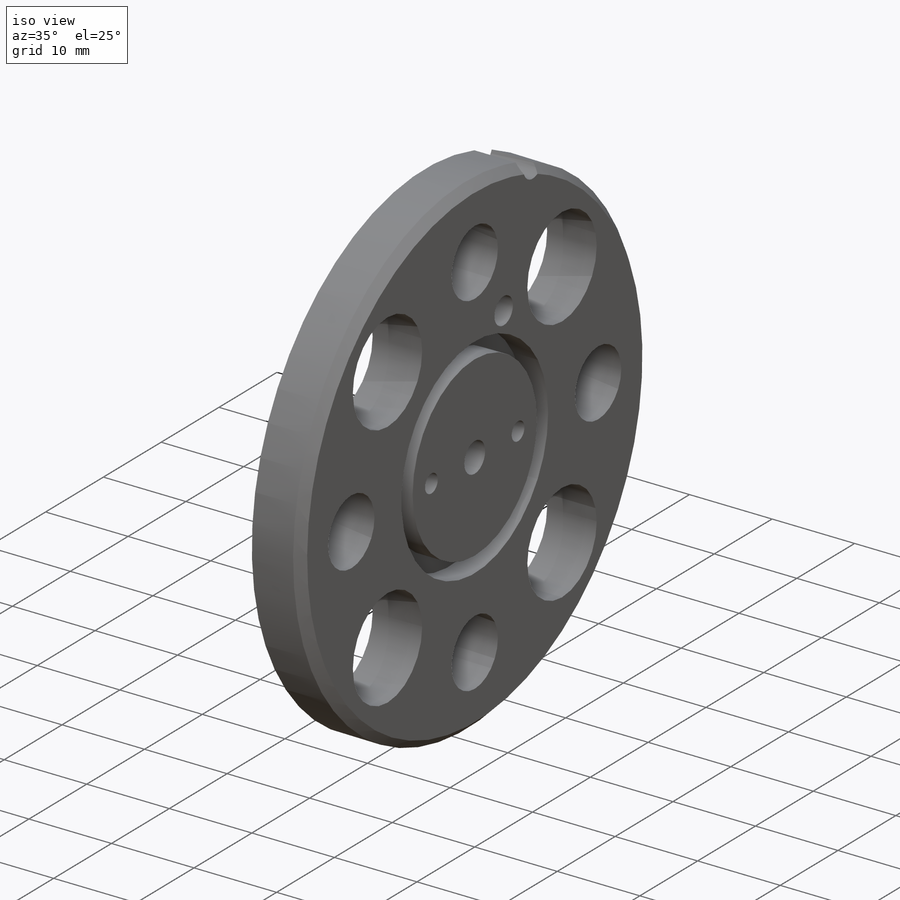
[diagram: iso view]
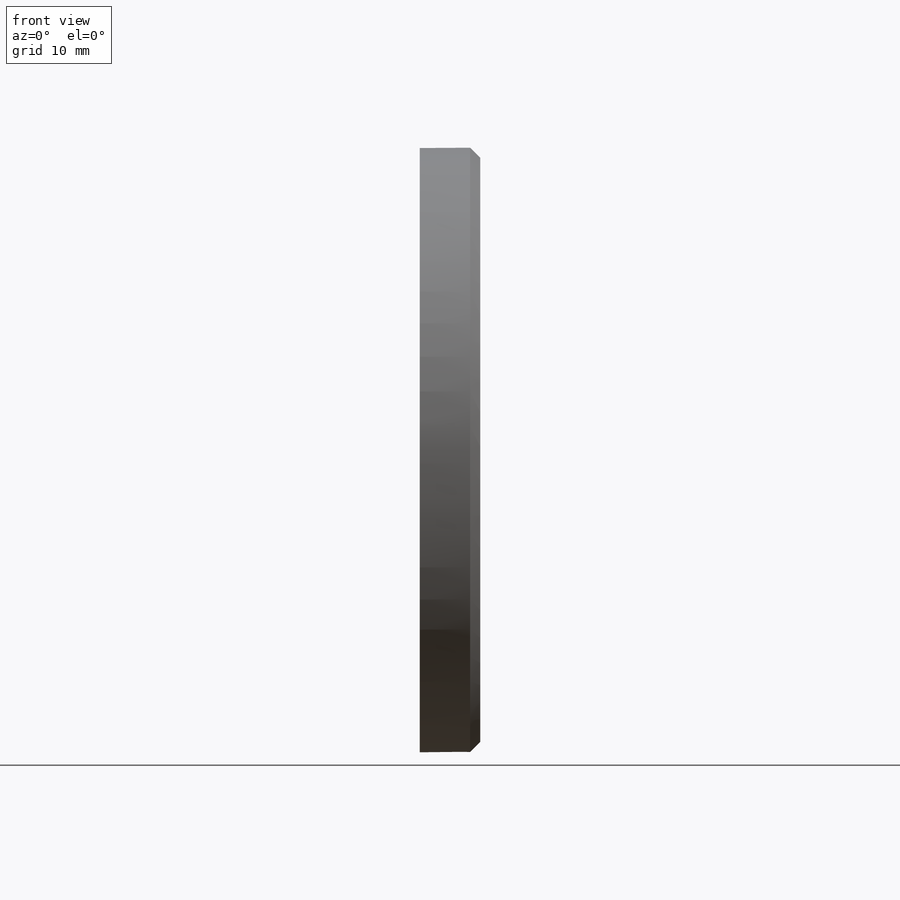
[diagram: front view]
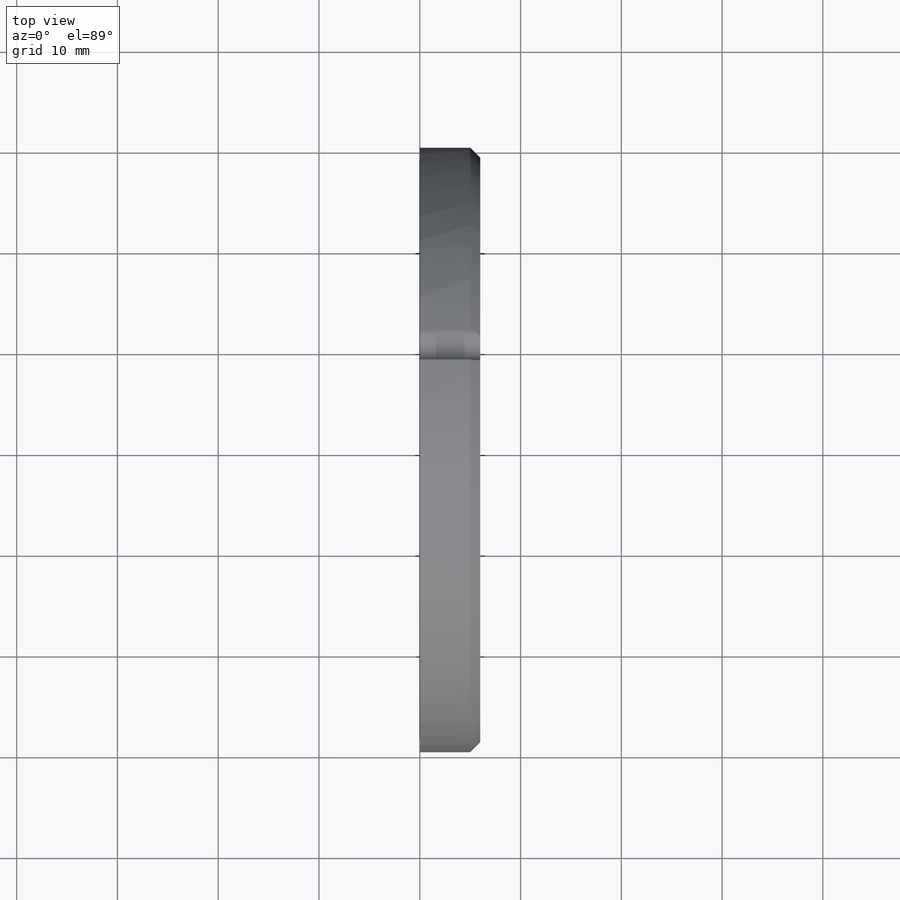
[diagram: top view]
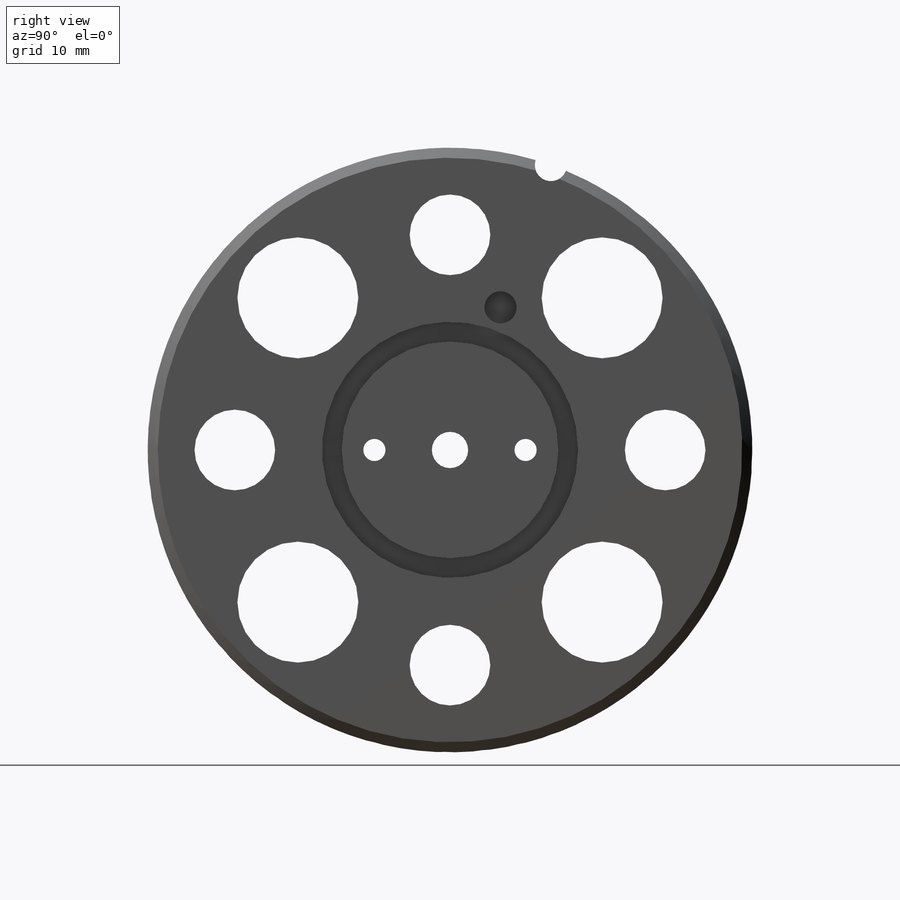
[diagram: right view]
SOLIDWORKS PART (.sldprt)
format: sldprt  version: not decoded by parser v0  size: 225,280 bytes
history: native  units: mm
features: plane x3, sketch x2, material x1, extrude x1, cut_extrude x1, chamfer x1 (+8 scaffold rows collapsed)
feature tree (17):
  scaffold x8  (default folders/planes/origin — collapsed)
  material  "Matériau <non spécifié>"
  plane  "Plan de face"
  plane  "Plan de dessus"
  plane  "Plan de droite"
  sketch  "Esquisse1"  dims[c1.D1=~1.048505mm c1.D2=~12.610653mm c1.D3=3.0mm c1.D4=1.45mm c1.D5=~1.12963mm c2.D1=7.5mm c2.D2=~45.78933mm c3.D2=45.0deg c3.D4=~72.760657mm c4.D4=19.5deg c4.D3=4.0]
  extrude  "Boss.-Extru.1"  Depth=6mm
  sketch  "Esquisse2"  dims[c1.D1=~52.72052mm c2.D1=19.5deg]
  cut_extrude  "Enlèv. mat.-Extru.1"  Depth=3mm
  chamfer  "Chanfrein1"  Distance=1mm Angle=45deg
decode coverage: 5 of 5 modeling features carry decoded parameters
note: ~ marks probable driven/reference dimensions
note: suppression state not decoded; provenance and decode notes live in map.json
